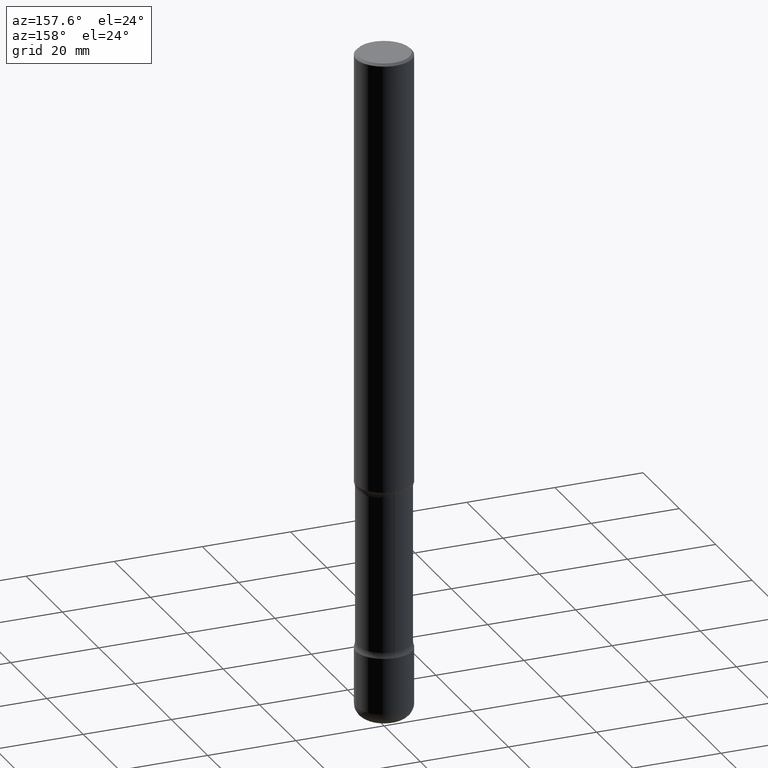
[diagram: clean part render]
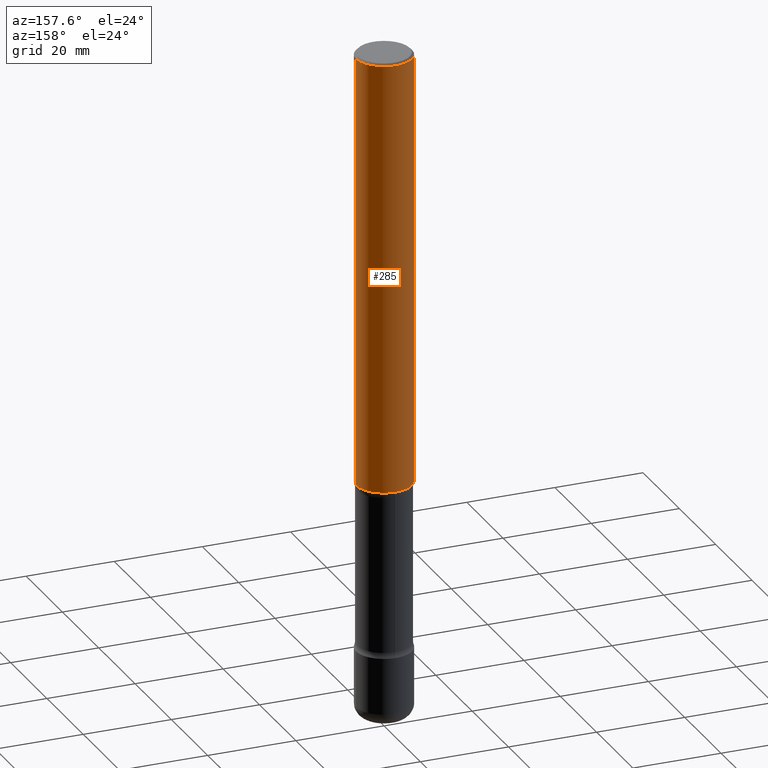
[diagram: same view with one face highlighted and labeled with its STEP entity id]
A machine part, auxiliary view. The second image highlights one B-rep face of the part: STEP entity #285.
In plain terms, the highlighted cylindrical surface (edge-blend (fillet) strip) has radius 6.35 mm, axis along (-0, 0, 1).
Its self-contained STEP definition (entity closure, byte-faithful):
#3 = CARTESIAN_POINT ( 'NONE',  ( 4.890937612370287172E-31, -6.982962677686310098E-17, -0.02000000000000005593 ) ) ;
#18 = VERTEX_POINT ( 'NONE', #353 ) ;
#84 = CYLINDRICAL_SURFACE ( 'NONE', #336, 0.2499999999999998890 ) ;
#98 = EDGE_CURVE ( 'NONE', #588, #325, #491, .T. ) ;
#130 = ORIENTED_EDGE ( 'NONE', *, *, #98, .T. ) ;
#143 = FACE_OUTER_BOUND ( 'NONE', #501, .T. ) ;
#168 = VECTOR ( 'NONE', #693, 39.37007874015748143 ) ;
#201 = LINE ( 'NONE', #451, #168 ) ;
#209 = EDGE_CURVE ( 'NONE', #325, #18, #674, .T. ) ;
#236 = DIRECTION ( 'NONE',  ( 1.000000000000000000, -6.982962677686266711E-15, 0.000000000000000000 ) ) ;
#250 = EDGE_CURVE ( 'NONE', #584, #18, #555, .T. ) ;
#280 = CARTESIAN_POINT ( 'NONE',  ( 9.476191623967405434E-29, -1.352949018801719066E-14, -3.875000000000000444 ) ) ;
#285 = ADVANCED_FACE ( 'NONE', ( #143 ), #84, .T. ) ;
#300 = DIRECTION ( 'NONE',  ( -2.445468806185136597E-29, 3.491481338843145583E-15, 1.000000000000000000 ) ) ;
#325 = VERTEX_POINT ( 'NONE', #455 ) ;
#328 = DIRECTION ( 'NONE',  ( 1.000000000000000000, -6.982962677686266711E-15, 4.876176775795935793E-29 ) ) ;
#331 = EDGE_CURVE ( 'NONE', #588, #584, #201, .T. ) ;
#336 = AXIS2_PLACEMENT_3D ( 'NONE', #382, #759, #328 ) ;
#353 = CARTESIAN_POINT ( 'NONE',  ( -0.2499999999999998057, 1.675911042644702196E-15, -0.02000000000000005593 ) ) ;
#382 = CARTESIAN_POINT ( 'NONE',  ( 0.000000000000000000, 0.000000000000000000, 0.000000000000000000 ) ) ;
#388 = ORIENTED_EDGE ( 'NONE', *, *, #250, .F. ) ;
#395 = ORIENTED_EDGE ( 'NONE', *, *, #209, .T. ) ;
#441 = AXIS2_PLACEMENT_3D ( 'NONE', #3, #300, #236 ) ;
#451 = CARTESIAN_POINT ( 'NONE',  ( 0.2499999999999998890, -1.745740669421565889E-15, 1.219044193948983388E-29 ) ) ;
#455 = CARTESIAN_POINT ( 'NONE',  ( -0.2500000000000000000, -5.023303067996774148E-15, -3.875000000000000444 ) ) ;
#491 = CIRCLE ( 'NONE', #761, 0.2500000000000000000 ) ;
#501 = EDGE_LOOP ( 'NONE', ( #130, #395, #388, #707 ) ) ;
#536 = DIRECTION ( 'NONE',  ( 1.000000000000000000, -6.982962677686270655E-15, 0.000000000000000000 ) ) ;
#555 = CIRCLE ( 'NONE', #441, 0.2499999999999998057 ) ;
#584 = VERTEX_POINT ( 'NONE', #603 ) ;
#588 = VERTEX_POINT ( 'NONE', #738 ) ;
#603 = CARTESIAN_POINT ( 'NONE',  ( 0.2499999999999998057, -1.784954126219744611E-15, -0.02000000000000005593 ) ) ;
#654 = DIRECTION ( 'NONE',  ( -2.445468806185136597E-29, 3.491481338843145583E-15, 1.000000000000000000 ) ) ;
#674 = LINE ( 'NONE', #678, #695 ) ;
#678 = CARTESIAN_POINT ( 'NONE',  ( -0.2499999999999998890, 1.776356839400249676E-15, -1.229733772563726025E-29 ) ) ;
#693 = DIRECTION ( 'NONE',  ( -2.445468806185136877E-29, 3.491481338843145188E-15, 1.000000000000000000 ) ) ;
#695 = VECTOR ( 'NONE', #746, 39.37007874015748143 ) ;
#707 = ORIENTED_EDGE ( 'NONE', *, *, #331, .F. ) ;
#738 = CARTESIAN_POINT ( 'NONE',  ( 0.2500000000000000000, -1.527523085743875734E-14, -3.875000000000000444 ) ) ;
#746 = DIRECTION ( 'NONE',  ( -2.445468806185136877E-29, 3.491481338843145188E-15, 1.000000000000000000 ) ) ;
#759 = DIRECTION ( 'NONE',  ( -2.445468806185136597E-29, 3.491481338843145583E-15, 1.000000000000000000 ) ) ;
#761 = AXIS2_PLACEMENT_3D ( 'NONE', #280, #654, #536 ) ;